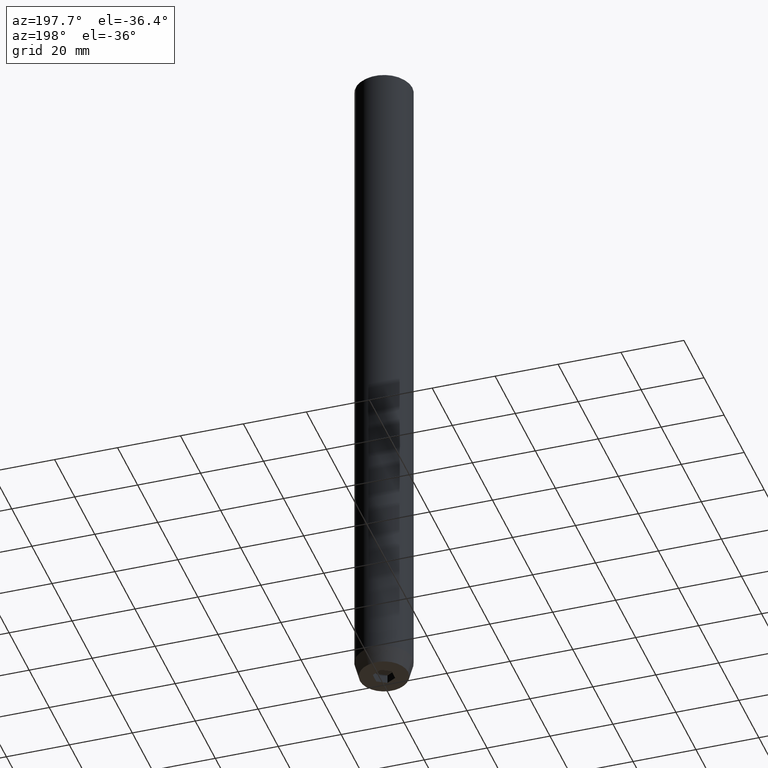
[diagram: clean part render]
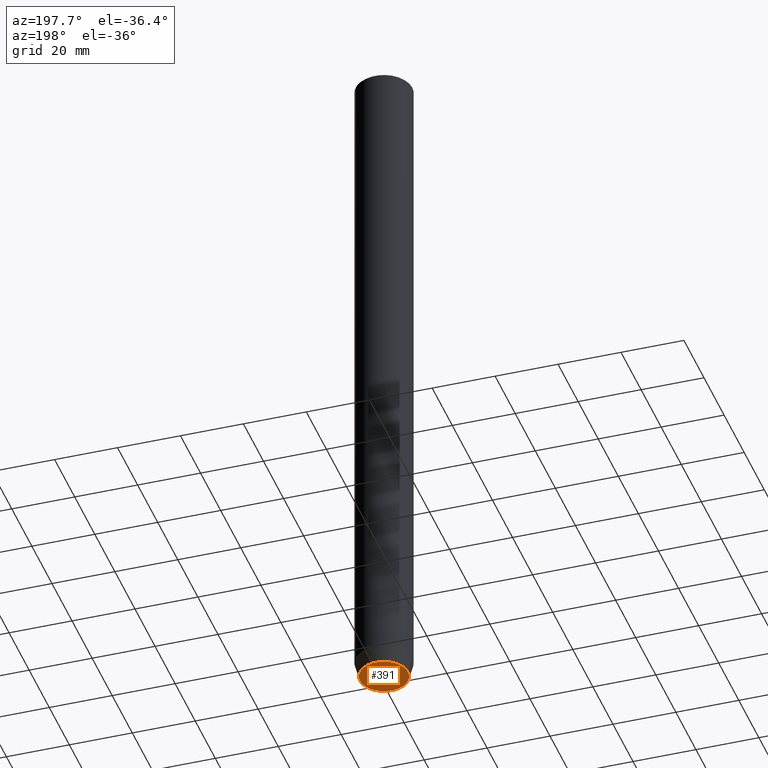
[diagram: same view with one face highlighted and labeled with its STEP entity id]
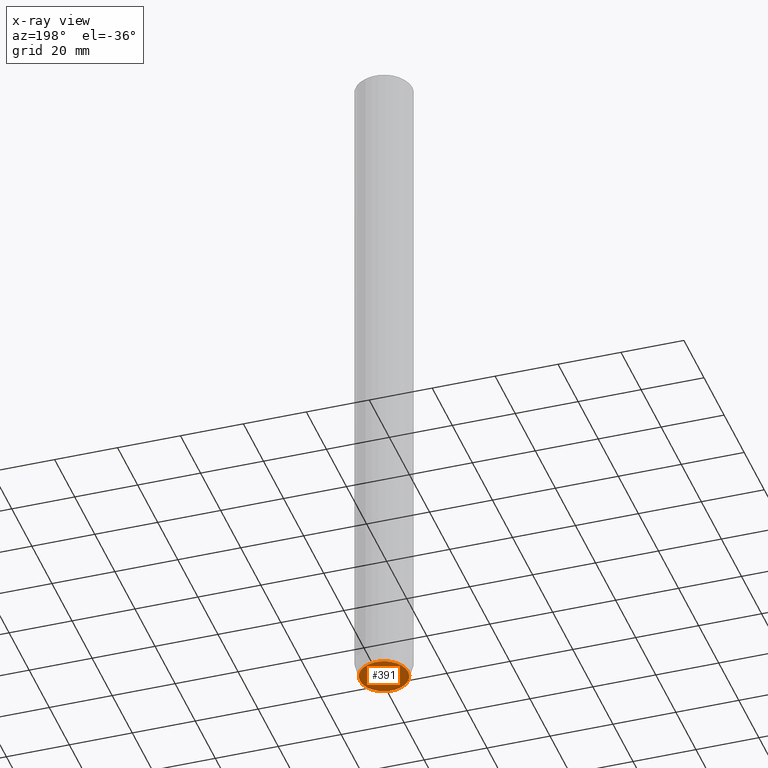
[diagram: x-ray of the same camera — body ghosted, the highlighted face saturated]
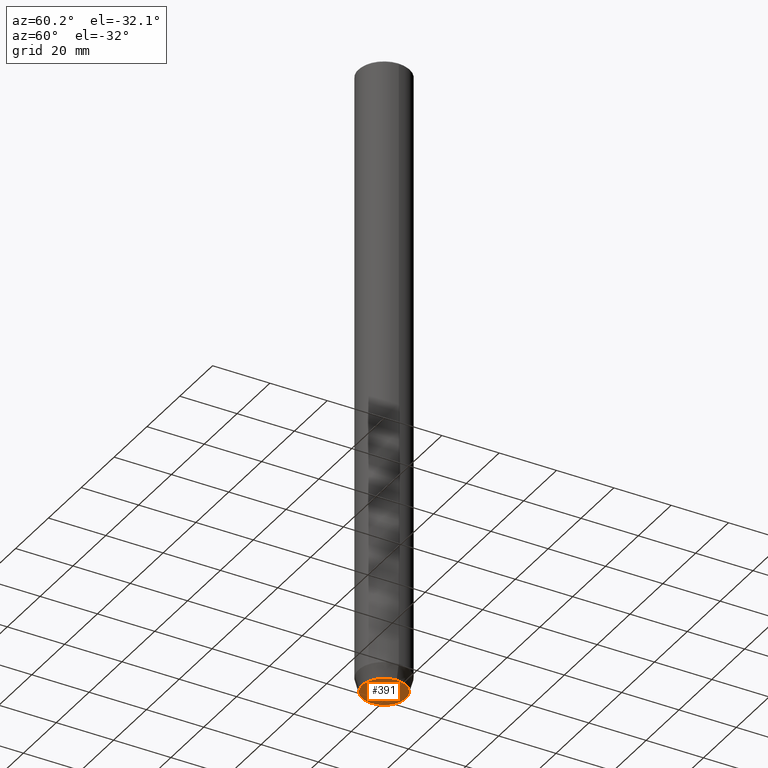
[diagram: same view with one face highlighted and labeled with its STEP entity id]
A machine part, auxiliary view. The second image highlights one B-rep face of the part: STEP entity #391.
The next image is the same camera in x-ray: the body ghosted, the highlighted face saturated — about 0% of this face is hidden behind the body in this view.
A second angle (auxiliary view) of the same face is appended — the face is thin or edge-on in the first view.
In plain terms, the highlighted planar face has unit normal (0, 0, -1).
Its self-contained STEP definition (entity closure, byte-faithful):
#3 = ORIENTED_EDGE ( 'NONE', *, *, #77, .F. ) ;
#8 = ORIENTED_EDGE ( 'NONE', *, *, #438, .F. ) ;
#15 = EDGE_CURVE ( 'NONE', #543, #250, #76, .T. ) ;
#17 = VERTEX_POINT ( 'NONE', #93 ) ;
#27 = EDGE_LOOP ( 'NONE', ( #470, #130, #3, #160, #63, #410 ) ) ;
#28 = LINE ( 'NONE', #511, #399 ) ;
#29 = FACE_BOUND ( 'NONE', #27, .T. ) ;
#30 = DIRECTION ( 'NONE',  ( -2.503857664561932376E-16, 1.000000000000000000, 0.000000000000000000 ) ) ;
#44 = CARTESIAN_POINT ( 'NONE',  ( 0.000000000000000000, 0.000000000000000000, -220.0000000000000000 ) ) ;
#60 = DIRECTION ( 'NONE',  ( 0.8660254037844385966, -0.5000000000000001110, 0.000000000000000000 ) ) ;
#61 = CARTESIAN_POINT ( 'NONE',  ( 3.000000000000000000, 0.000000000000000000, -220.0000000000000000 ) ) ;
#63 = ORIENTED_EDGE ( 'NONE', *, *, #169, .F. ) ;
#64 = EDGE_CURVE ( 'NONE', #106, #224, #497, .T. ) ;
#76 = CIRCLE ( 'NONE', #563, 7.660254037844374864 ) ;
#77 = EDGE_CURVE ( 'NONE', #335, #294, #28, .T. ) ;
#87 = DIRECTION ( 'NONE',  ( -1.000000000000000000, 0.000000000000000000, -0.000000000000000000 ) ) ;
#93 = CARTESIAN_POINT ( 'NONE',  ( 3.000000000000000000, -1.732050807568876527, -220.0000000000000000 ) ) ;
#99 = CARTESIAN_POINT ( 'NONE',  ( -7.660254037844374864, 1.020146339021393877E-15, -220.0000000000000000 ) ) ;
#106 = VERTEX_POINT ( 'NONE', #198 ) ;
#107 = EDGE_CURVE ( 'NONE', #294, #587, #418, .T. ) ;
#118 = CARTESIAN_POINT ( 'NONE',  ( -2.168404344971008868E-16, -3.464101615137754830, -220.0000000000000000 ) ) ;
#128 = VECTOR ( 'NONE', #142, 999.9999999999998863 ) ;
#130 = ORIENTED_EDGE ( 'NONE', *, *, #107, .F. ) ;
#142 = DIRECTION ( 'NONE',  ( 0.8660254037844387076, 0.4999999999999999445, 0.000000000000000000 ) ) ;
#160 = ORIENTED_EDGE ( 'NONE', *, *, #568, .F. ) ;
#167 = FACE_OUTER_BOUND ( 'NONE', #559, .T. ) ;
#169 = EDGE_CURVE ( 'NONE', #224, #17, #434, .T. ) ;
#176 = ORIENTED_EDGE ( 'NONE', *, *, #15, .F. ) ;
#198 = CARTESIAN_POINT ( 'NONE',  ( -2.168404344971008868E-16, 3.464101615137753942, -220.0000000000000000 ) ) ;
#224 = VERTEX_POINT ( 'NONE', #478 ) ;
#250 = VERTEX_POINT ( 'NONE', #99 ) ;
#254 = DIRECTION ( 'NONE',  ( -0.000000000000000000, -0.000000000000000000, 1.000000000000000000 ) ) ;
#270 = LINE ( 'NONE', #541, #128 ) ;
#274 = CARTESIAN_POINT ( 'NONE',  ( 1.500000000000000222, 2.598076211353315568, -220.0000000000000000 ) ) ;
#290 = PLANE ( 'NONE',  #334 ) ;
#294 = VERTEX_POINT ( 'NONE', #413 ) ;
#305 = CARTESIAN_POINT ( 'NONE',  ( 1.500000000000000222, -2.598076211353315568, -220.0000000000000000 ) ) ;
#310 = VECTOR ( 'NONE', #60, 1000.000000000000000 ) ;
#314 = DIRECTION ( 'NONE',  ( -0.000000000000000000, -0.000000000000000000, 1.000000000000000000 ) ) ;
#321 = VECTOR ( 'NONE', #30, 1000.000000000000000 ) ;
#329 = CARTESIAN_POINT ( 'NONE',  ( -3.000000000000000444, -7.511572993685800087E-16, -220.0000000000000000 ) ) ;
#334 = AXIS2_PLACEMENT_3D ( 'NONE', #521, #479, #87 ) ;
#335 = VERTEX_POINT ( 'NONE', #118 ) ;
#340 = CARTESIAN_POINT ( 'NONE',  ( -3.000000000000000888, 1.732050807568876527, -220.0000000000000000 ) ) ;
#343 = CARTESIAN_POINT ( 'NONE',  ( 0.000000000000000000, 0.000000000000000000, -220.0000000000000000 ) ) ;
#379 = EDGE_CURVE ( 'NONE', #587, #106, #270, .T. ) ;
#391 = ADVANCED_FACE ( 'NONE', ( #29, #167 ), #290, .T. ) ;
#392 = DIRECTION ( 'NONE',  ( 1.000000000000000000, 0.000000000000000000, 0.000000000000000000 ) ) ;
#399 = VECTOR ( 'NONE', #517, 1000.000000000000000 ) ;
#405 = DIRECTION ( 'NONE',  ( 0.000000000000000000, -1.000000000000000000, 0.000000000000000000 ) ) ;
#410 = ORIENTED_EDGE ( 'NONE', *, *, #64, .F. ) ;
#413 = CARTESIAN_POINT ( 'NONE',  ( -3.000000000000000000, -1.732050807568877859, -220.0000000000000000 ) ) ;
#418 = LINE ( 'NONE', #329, #321 ) ;
#427 = CARTESIAN_POINT ( 'NONE',  ( 7.660254037844374864, 0.000000000000000000, -220.0000000000000000 ) ) ;
#431 = VECTOR ( 'NONE', #528, 1000.000000000000000 ) ;
#434 = LINE ( 'NONE', #61, #562 ) ;
#438 = EDGE_CURVE ( 'NONE', #250, #543, #466, .T. ) ;
#466 = CIRCLE ( 'NONE', #485, 7.660254037844374864 ) ;
#470 = ORIENTED_EDGE ( 'NONE', *, *, #379, .F. ) ;
#478 = CARTESIAN_POINT ( 'NONE',  ( 3.000000000000000000, 1.732050807568876527, -220.0000000000000000 ) ) ;
#479 = DIRECTION ( 'NONE',  ( 0.000000000000000000, 0.000000000000000000, -1.000000000000000000 ) ) ;
#485 = AXIS2_PLACEMENT_3D ( 'NONE', #343, #254, #392 ) ;
#497 = LINE ( 'NONE', #274, #310 ) ;
#511 = CARTESIAN_POINT ( 'NONE',  ( -1.500000000000000666, -2.598076211353316456, -220.0000000000000000 ) ) ;
#517 = DIRECTION ( 'NONE',  ( -0.8660254037844385966, 0.5000000000000001110, 0.000000000000000000 ) ) ;
#521 = CARTESIAN_POINT ( 'NONE',  ( 0.000000000000000000, 7.660254037844374864, -220.0000000000000000 ) ) ;
#523 = LINE ( 'NONE', #305, #431 ) ;
#528 = DIRECTION ( 'NONE',  ( -0.8660254037844385966, -0.5000000000000001110, 0.000000000000000000 ) ) ;
#541 = CARTESIAN_POINT ( 'NONE',  ( -1.499999999999999556, 2.598076211353316012, -220.0000000000000000 ) ) ;
#543 = VERTEX_POINT ( 'NONE', #427 ) ;
#544 = DIRECTION ( 'NONE',  ( 1.000000000000000000, 0.000000000000000000, 0.000000000000000000 ) ) ;
#559 = EDGE_LOOP ( 'NONE', ( #176, #8 ) ) ;
#562 = VECTOR ( 'NONE', #405, 1000.000000000000000 ) ;
#563 = AXIS2_PLACEMENT_3D ( 'NONE', #44, #314, #544 ) ;
#568 = EDGE_CURVE ( 'NONE', #17, #335, #523, .T. ) ;
#587 = VERTEX_POINT ( 'NONE', #340 ) ;